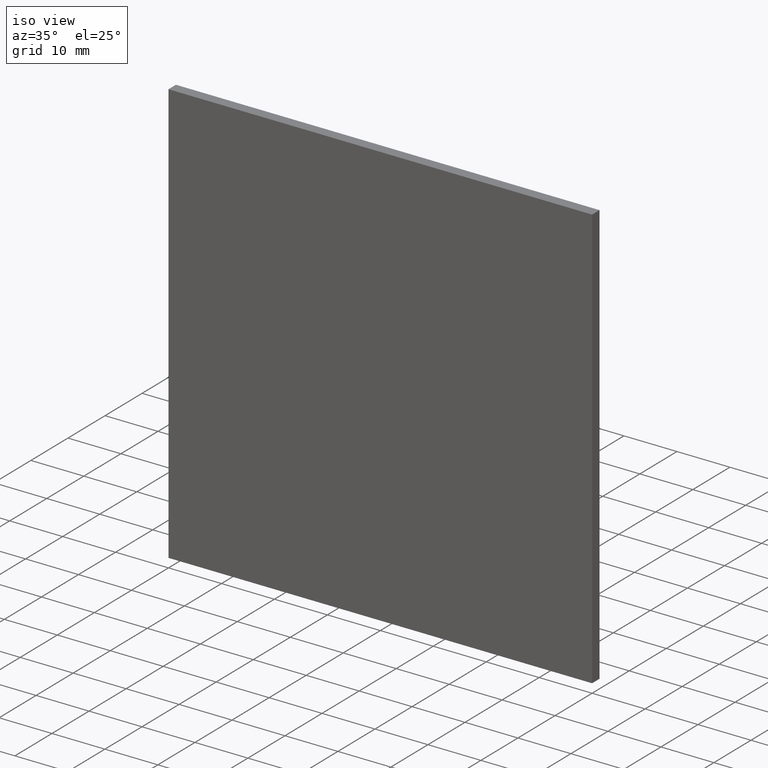
[diagram: clean part render]
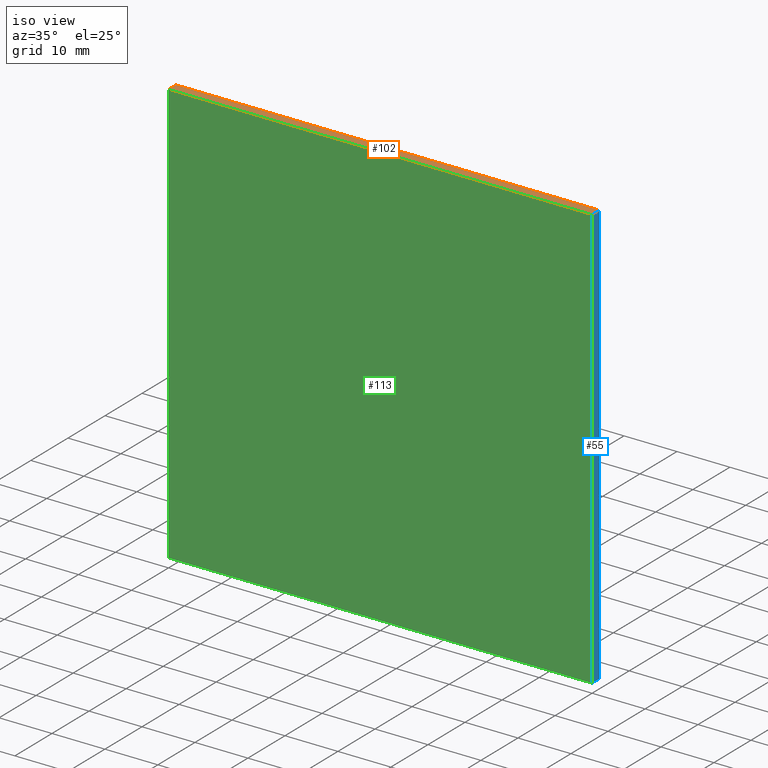
[diagram: same view with three faces highlighted in distinct colors, each labeled with its STEP entity id]
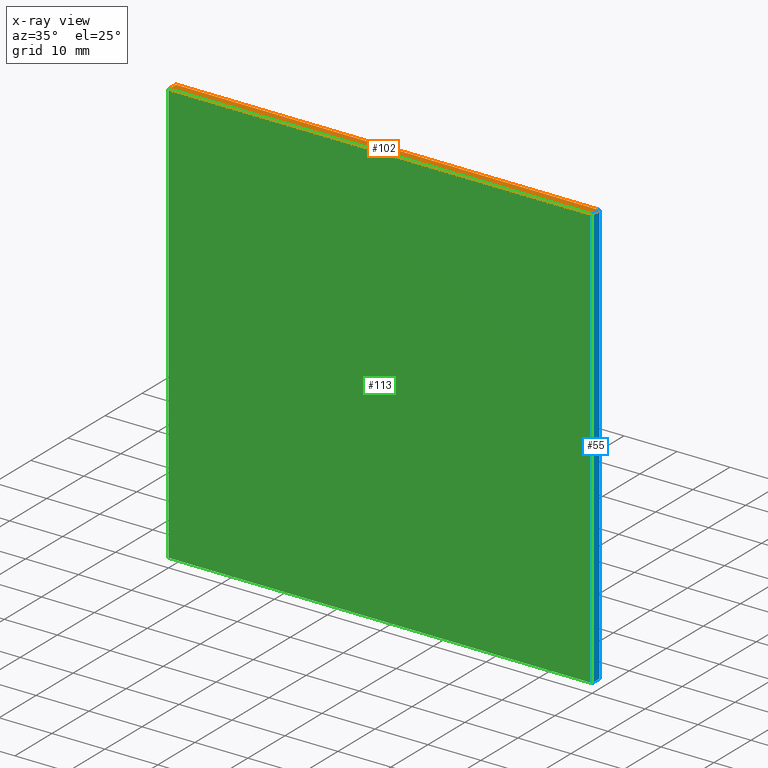
[diagram: x-ray of the same camera — body ghosted, the three highlighted faces saturated]
A machine part, iso view with three faces highlighted in distinct colors.
The next image is the same camera in x-ray (body ghosted, the three faces saturated) — at least one of them is partly hidden behind the body in this view.
Their STEP definitions:

[orange] entity #102 — the highlighted planar face has unit normal (0, 0, -1).
#8 = EDGE_CURVE ( 'NONE', #40, #31, #56, .T. ) ;
#16 = DIRECTION ( 'NONE',  ( -0.0000000000000000000, -1.000000000000000000, -0.0000000000000000000 ) ) ;
#24 = ORIENTED_EDGE ( 'NONE', *, *, #150, .F. ) ;
#30 = DIRECTION ( 'NONE',  ( 1.000000000000000000, 0.0000000000000000000, 0.0000000000000000000 ) ) ;
#31 = VERTEX_POINT ( 'NONE', #165 ) ;
#40 = VERTEX_POINT ( 'NONE', #136 ) ;
#43 = PLANE ( 'NONE',  #47 ) ;
#47 = AXIS2_PLACEMENT_3D ( 'NONE', #166, #79, #185 ) ;
#48 = VECTOR ( 'NONE', #62, 1000.000000000000000 ) ;
#56 = LINE ( 'NONE', #127, #172 ) ;
#60 = LINE ( 'NONE', #123, #48 ) ;
#62 = DIRECTION ( 'NONE',  ( -0.0000000000000000000, -1.000000000000000000, -0.0000000000000000000 ) ) ;
#64 = CARTESIAN_POINT ( 'NONE',  ( -40.00000000000000700, 0.0000000000000000000, 39.99999999999999300 ) ) ;
#79 = DIRECTION ( 'NONE',  ( 0.0000000000000000000, 0.0000000000000000000, -1.000000000000000000 ) ) ;
#80 = FACE_OUTER_BOUND ( 'NONE', #145, .T. ) ;
#81 = EDGE_CURVE ( 'NONE', #40, #160, #164, .T. ) ;
#87 = CARTESIAN_POINT ( 'NONE',  ( -40.00000000000000700, 2.000000000000000000, 39.99999999999999300 ) ) ;
#102 = ADVANCED_FACE ( 'NONE', ( #80 ), #43, .F. ) ;
#106 = ORIENTED_EDGE ( 'NONE', *, *, #8, .T. ) ;
#123 = CARTESIAN_POINT ( 'NONE',  ( 39.99999999999999300, 2.000000000000000000, 39.99999999999999300 ) ) ;
#126 = CARTESIAN_POINT ( 'NONE',  ( 39.99999999999999300, 2.000000000000000000, 39.99999999999999300 ) ) ;
#127 = CARTESIAN_POINT ( 'NONE',  ( -40.00000000000000700, 2.000000000000000000, 39.99999999999999300 ) ) ;
#128 = EDGE_CURVE ( 'NONE', #31, #174, #186, .T. ) ;
#136 = CARTESIAN_POINT ( 'NONE',  ( -40.00000000000000700, 2.000000000000000000, 39.99999999999999300 ) ) ;
#145 = EDGE_LOOP ( 'NONE', ( #154, #24, #162, #106 ) ) ;
#150 = EDGE_CURVE ( 'NONE', #160, #174, #60, .T. ) ;
#154 = ORIENTED_EDGE ( 'NONE', *, *, #128, .T. ) ;
#160 = VERTEX_POINT ( 'NONE', #126 ) ;
#162 = ORIENTED_EDGE ( 'NONE', *, *, #81, .F. ) ;
#164 = LINE ( 'NONE', #87, #191 ) ;
#165 = CARTESIAN_POINT ( 'NONE',  ( -40.00000000000000700, 0.0000000000000000000, 39.99999999999999300 ) ) ;
#166 = CARTESIAN_POINT ( 'NONE',  ( -40.00000000000000700, 2.000000000000000000, 39.99999999999999300 ) ) ;
#172 = VECTOR ( 'NONE', #16, 1000.000000000000000 ) ;
#174 = VERTEX_POINT ( 'NONE', #201 ) ;
#179 = VECTOR ( 'NONE', #30, 1000.000000000000000 ) ;
#184 = DIRECTION ( 'NONE',  ( 1.000000000000000000, 0.0000000000000000000, 0.0000000000000000000 ) ) ;
#185 = DIRECTION ( 'NONE',  ( -1.000000000000000000, 0.0000000000000000000, -0.0000000000000000000 ) ) ;
#186 = LINE ( 'NONE', #64, #179 ) ;
#191 = VECTOR ( 'NONE', #184, 1000.000000000000000 ) ;
#201 = CARTESIAN_POINT ( 'NONE',  ( 39.99999999999999300, 0.0000000000000000000, 39.99999999999999300 ) ) ;

[blue] entity #55 — the highlighted planar face has unit normal (-1, 0, -0).
#7 = LINE ( 'NONE', #96, #168 ) ;
#12 = FACE_OUTER_BOUND ( 'NONE', #112, .T. ) ;
#32 = CARTESIAN_POINT ( 'NONE',  ( 40.00000000000000000, 0.0000000000000000000, -40.00000000000000700 ) ) ;
#33 = EDGE_CURVE ( 'NONE', #76, #85, #7, .T. ) ;
#34 = DIRECTION ( 'NONE',  ( 8.673617379884035500E-017, -0.0000000000000000000, -1.000000000000000000 ) ) ;
#38 = ORIENTED_EDGE ( 'NONE', *, *, #33, .F. ) ;
#48 = VECTOR ( 'NONE', #62, 1000.000000000000000 ) ;
#55 = ADVANCED_FACE ( 'NONE', ( #12 ), #200, .F. ) ;
#60 = LINE ( 'NONE', #123, #48 ) ;
#62 = DIRECTION ( 'NONE',  ( -0.0000000000000000000, -1.000000000000000000, -0.0000000000000000000 ) ) ;
#66 = CARTESIAN_POINT ( 'NONE',  ( 40.00000000000000000, 0.0000000000000000000, -40.00000000000000700 ) ) ;
#68 = LINE ( 'NONE', #66, #151 ) ;
#73 = ORIENTED_EDGE ( 'NONE', *, *, #150, .T. ) ;
#74 = VECTOR ( 'NONE', #97, 1000.000000000000000 ) ;
#76 = VERTEX_POINT ( 'NONE', #109 ) ;
#85 = VERTEX_POINT ( 'NONE', #32 ) ;
#96 = CARTESIAN_POINT ( 'NONE',  ( 40.00000000000000000, 2.000000000000000000, -40.00000000000000700 ) ) ;
#97 = DIRECTION ( 'NONE',  ( 8.673617379884035500E-017, -0.0000000000000000000, -1.000000000000000000 ) ) ;
#101 = EDGE_CURVE ( 'NONE', #160, #76, #114, .T. ) ;
#109 = CARTESIAN_POINT ( 'NONE',  ( 40.00000000000000000, 2.000000000000000000, -40.00000000000000700 ) ) ;
#112 = EDGE_LOOP ( 'NONE', ( #129, #38, #125, #73 ) ) ;
#114 = LINE ( 'NONE', #170, #74 ) ;
#119 = EDGE_CURVE ( 'NONE', #174, #85, #68, .T. ) ;
#123 = CARTESIAN_POINT ( 'NONE',  ( 39.99999999999999300, 2.000000000000000000, 39.99999999999999300 ) ) ;
#125 = ORIENTED_EDGE ( 'NONE', *, *, #101, .F. ) ;
#126 = CARTESIAN_POINT ( 'NONE',  ( 39.99999999999999300, 2.000000000000000000, 39.99999999999999300 ) ) ;
#129 = ORIENTED_EDGE ( 'NONE', *, *, #119, .T. ) ;
#133 = DIRECTION ( 'NONE',  ( -8.673617379884035500E-017, 0.0000000000000000000, 1.000000000000000000 ) ) ;
#142 = CARTESIAN_POINT ( 'NONE',  ( 40.00000000000000000, 2.000000000000000000, -40.00000000000000700 ) ) ;
#150 = EDGE_CURVE ( 'NONE', #160, #174, #60, .T. ) ;
#151 = VECTOR ( 'NONE', #34, 1000.000000000000000 ) ;
#158 = DIRECTION ( 'NONE',  ( -1.000000000000000000, 0.0000000000000000000, -8.673617379884035500E-017 ) ) ;
#160 = VERTEX_POINT ( 'NONE', #126 ) ;
#168 = VECTOR ( 'NONE', #169, 1000.000000000000000 ) ;
#169 = DIRECTION ( 'NONE',  ( -0.0000000000000000000, -1.000000000000000000, -0.0000000000000000000 ) ) ;
#170 = CARTESIAN_POINT ( 'NONE',  ( 40.00000000000000000, 2.000000000000000000, -40.00000000000000700 ) ) ;
#174 = VERTEX_POINT ( 'NONE', #201 ) ;
#182 = AXIS2_PLACEMENT_3D ( 'NONE', #142, #158, #133 ) ;
#200 = PLANE ( 'NONE',  #182 ) ;
#201 = CARTESIAN_POINT ( 'NONE',  ( 39.99999999999999300, 0.0000000000000000000, 39.99999999999999300 ) ) ;

[green] entity #113 — the highlighted planar face has unit normal (0, 1, -0).
#14 = DIRECTION ( 'NONE',  ( 0.0000000000000000000, 0.0000000000000000000, 1.000000000000000000 ) ) ;
#23 = LINE ( 'NONE', #28, #104 ) ;
#28 = CARTESIAN_POINT ( 'NONE',  ( -40.00000000000001400, 0.0000000000000000000, -40.00000000000000700 ) ) ;
#30 = DIRECTION ( 'NONE',  ( 1.000000000000000000, 0.0000000000000000000, 0.0000000000000000000 ) ) ;
#31 = VERTEX_POINT ( 'NONE', #165 ) ;
#32 = CARTESIAN_POINT ( 'NONE',  ( 40.00000000000000000, 0.0000000000000000000, -40.00000000000000700 ) ) ;
#34 = DIRECTION ( 'NONE',  ( 8.673617379884035500E-017, -0.0000000000000000000, -1.000000000000000000 ) ) ;
#36 = DIRECTION ( 'NONE',  ( 0.0000000000000000000, 1.000000000000000000, -0.0000000000000000000 ) ) ;
#45 = CARTESIAN_POINT ( 'NONE',  ( -40.00000000000001400, 0.0000000000000000000, -40.00000000000000700 ) ) ;
#53 = EDGE_CURVE ( 'NONE', #148, #31, #93, .T. ) ;
#64 = CARTESIAN_POINT ( 'NONE',  ( -40.00000000000000700, 0.0000000000000000000, 39.99999999999999300 ) ) ;
#66 = CARTESIAN_POINT ( 'NONE',  ( 40.00000000000000000, 0.0000000000000000000, -40.00000000000000700 ) ) ;
#68 = LINE ( 'NONE', #66, #151 ) ;
#71 = ORIENTED_EDGE ( 'NONE', *, *, #119, .F. ) ;
#72 = AXIS2_PLACEMENT_3D ( 'NONE', #95, #36, #14 ) ;
#82 = DIRECTION ( 'NONE',  ( 8.673617379884035500E-017, 0.0000000000000000000, 1.000000000000000000 ) ) ;
#85 = VERTEX_POINT ( 'NONE', #32 ) ;
#90 = ORIENTED_EDGE ( 'NONE', *, *, #53, .F. ) ;
#93 = LINE ( 'NONE', #137, #134 ) ;
#95 = CARTESIAN_POINT ( 'NONE',  ( 0.0000000000000000000, 0.0000000000000000000, 0.0000000000000000000 ) ) ;
#104 = VECTOR ( 'NONE', #180, 1000.000000000000000 ) ;
#108 = FACE_OUTER_BOUND ( 'NONE', #146, .T. ) ;
#113 = ADVANCED_FACE ( 'NONE', ( #108 ), #175, .F. ) ;
#119 = EDGE_CURVE ( 'NONE', #174, #85, #68, .T. ) ;
#121 = ORIENTED_EDGE ( 'NONE', *, *, #128, .F. ) ;
#128 = EDGE_CURVE ( 'NONE', #31, #174, #186, .T. ) ;
#134 = VECTOR ( 'NONE', #82, 1000.000000000000000 ) ;
#137 = CARTESIAN_POINT ( 'NONE',  ( -40.00000000000001400, 0.0000000000000000000, -40.00000000000000700 ) ) ;
#139 = EDGE_CURVE ( 'NONE', #85, #148, #23, .T. ) ;
#146 = EDGE_LOOP ( 'NONE', ( #71, #121, #90, #188 ) ) ;
#148 = VERTEX_POINT ( 'NONE', #45 ) ;
#151 = VECTOR ( 'NONE', #34, 1000.000000000000000 ) ;
#165 = CARTESIAN_POINT ( 'NONE',  ( -40.00000000000000700, 0.0000000000000000000, 39.99999999999999300 ) ) ;
#174 = VERTEX_POINT ( 'NONE', #201 ) ;
#175 = PLANE ( 'NONE',  #72 ) ;
#179 = VECTOR ( 'NONE', #30, 1000.000000000000000 ) ;
#180 = DIRECTION ( 'NONE',  ( -1.000000000000000000, -0.0000000000000000000, -0.0000000000000000000 ) ) ;
#186 = LINE ( 'NONE', #64, #179 ) ;
#188 = ORIENTED_EDGE ( 'NONE', *, *, #139, .F. ) ;
#201 = CARTESIAN_POINT ( 'NONE',  ( 39.99999999999999300, 0.0000000000000000000, 39.99999999999999300 ) ) ;